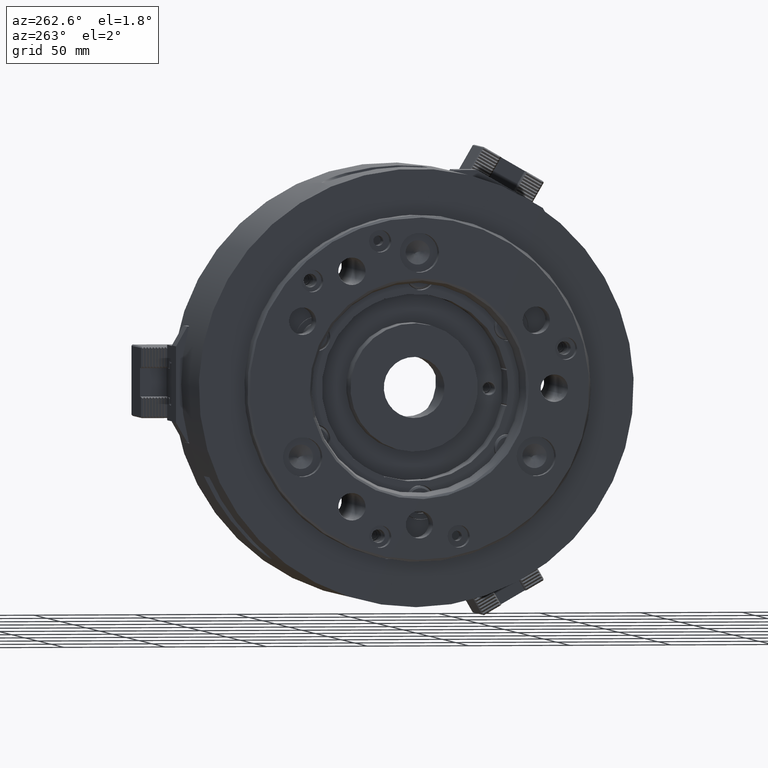
[diagram: clean part render]
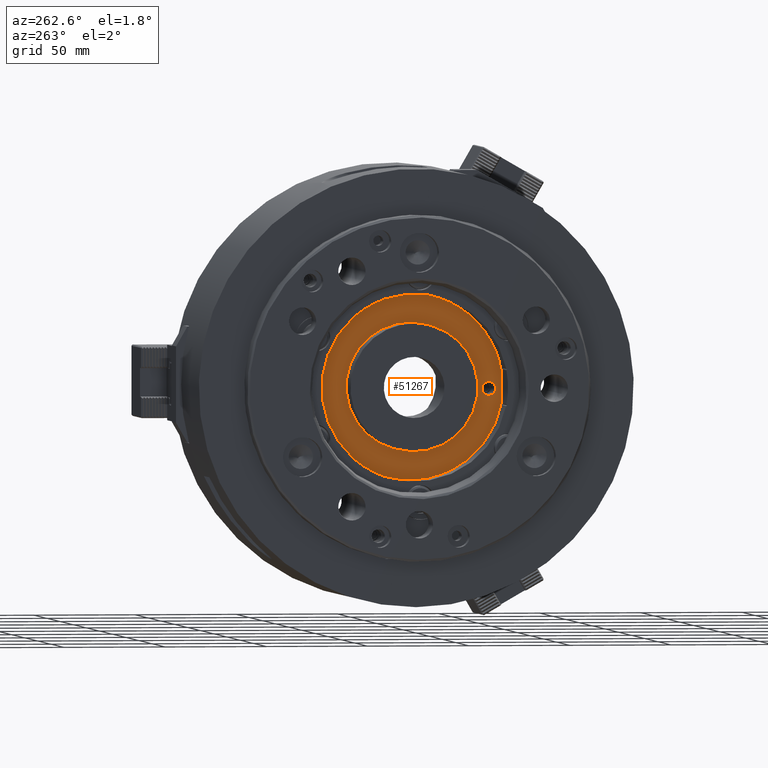
[diagram: same view with one face highlighted and labeled with its STEP entity id]
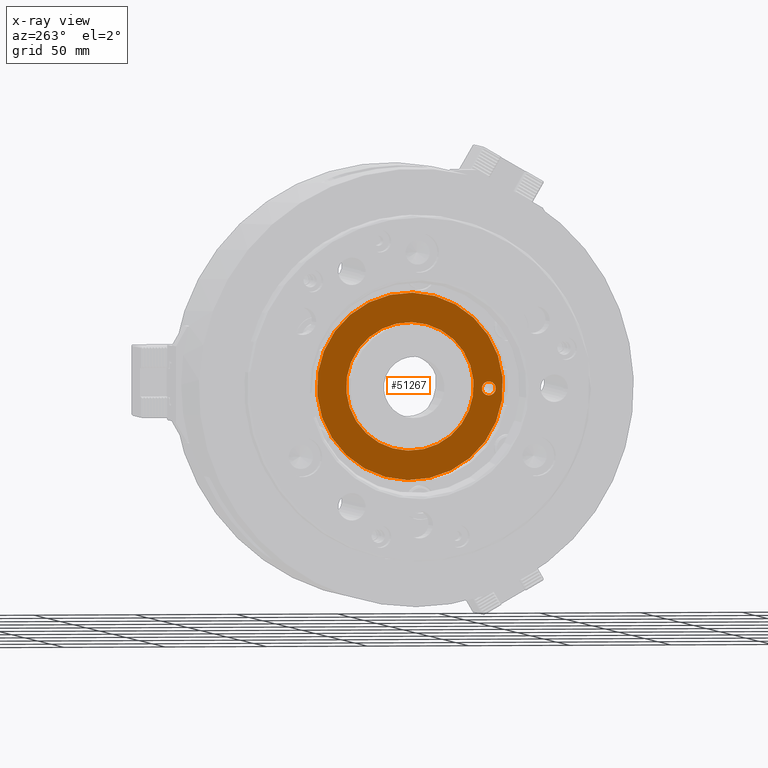
[diagram: x-ray of the same camera — body ghosted, the highlighted face saturated]
A machine part, auxiliary view. The second image highlights one B-rep face of the part: STEP entity #51267.
The next image is the same camera in x-ray: the body ghosted, the highlighted face saturated — about 0% of this face is hidden behind the body in this view.
In plain terms, the highlighted planar face has unit normal (-1, 0, 0).
Its self-contained STEP definition (entity closure, byte-faithful):
#13477=PLANE('',#54832);
#18637=ORIENTED_EDGE('',*,*,#32007,.F.);
#18638=ORIENTED_EDGE('',*,*,#32008,.T.);
#18639=ORIENTED_EDGE('',*,*,#31990,.F.);
#31990=EDGE_CURVE('',#43133,#43133,#38284,.T.);
#32007=EDGE_CURVE('',#43150,#43150,#38293,.T.);
#32008=EDGE_CURVE('',#43151,#43151,#38294,.T.);
#38284=CIRCLE('',#54819,46.);
#38293=CIRCLE('',#54833,3.4);
#38294=CIRCLE('',#54834,31.5);
#39536=EDGE_LOOP('',(#18637));
#39537=EDGE_LOOP('',(#18638));
#39538=EDGE_LOOP('',(#18639));
#43133=VERTEX_POINT('',#74596);
#43150=VERTEX_POINT('',#74631);
#43151=VERTEX_POINT('',#74633);
#47983=FACE_BOUND('',#39536,.T.);
#47984=FACE_BOUND('',#39537,.T.);
#47985=FACE_BOUND('',#39538,.T.);
#51267=ADVANCED_FACE('',(#47983,#47984,#47985),#13477,.T.);
#54819=AXIS2_PLACEMENT_3D('',#74595,#60505,#60506);
#54832=AXIS2_PLACEMENT_3D('',#74629,#60535,#60536);
#54833=AXIS2_PLACEMENT_3D('',#74630,#60537,#60538);
#54834=AXIS2_PLACEMENT_3D('',#74632,#60539,#60540);
#60505=DIRECTION('',(1.,0.,0.));
#60506=DIRECTION('',(0.,0.0287614360713102,-0.999586304325502));
#60535=DIRECTION('',(-1.,0.,0.));
#60536=DIRECTION('',(0.,-0.0287614360713102,0.999586304325502));
#60537=DIRECTION('',(-1.,0.,0.));
#60538=DIRECTION('',(0.,-0.0287614360713102,0.999586304325502));
#60539=DIRECTION('',(1.,0.,0.));
#60540=DIRECTION('',(0.,0.0287614360713102,-0.999586304325502));
#74595=CARTESIAN_POINT('',(-76.,0.,0.));
#74596=CARTESIAN_POINT('',(-76.,1.32302605928027,-45.9809699989731));
#74629=CARTESIAN_POINT('',(-76.,24.136259176692,-39.1591750801207));
#74630=CARTESIAN_POINT('',(-76.,-38.9838658686946,-1.1216960067811));
#74631=CARTESIAN_POINT('',(-76.,-39.081654751337,2.27689742792561));
#74632=CARTESIAN_POINT('',(-76.,0.,0.));
#74633=CARTESIAN_POINT('',(-76.,0.905985236246272,-31.4869685862533));